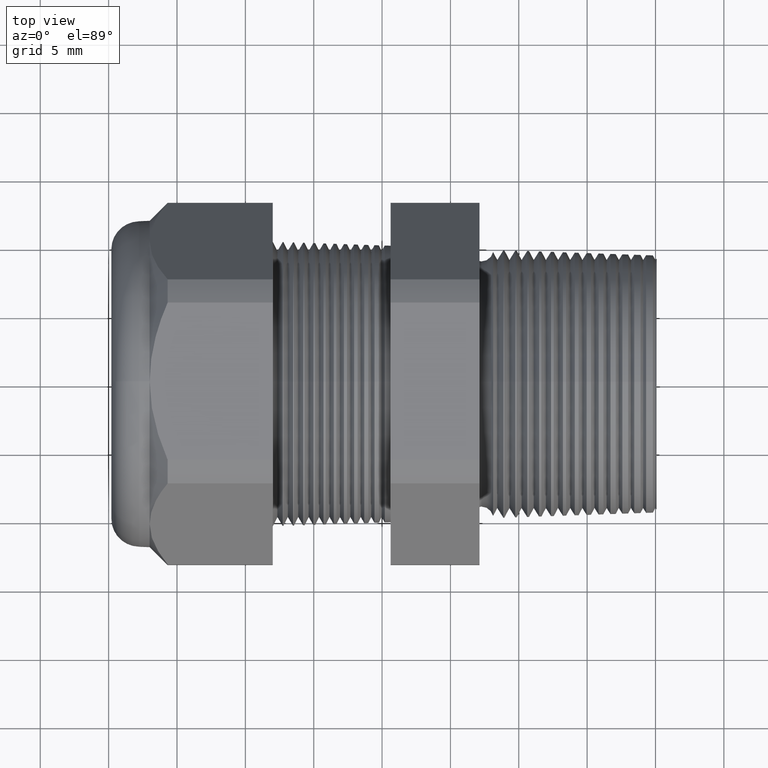
[diagram: clean part render]
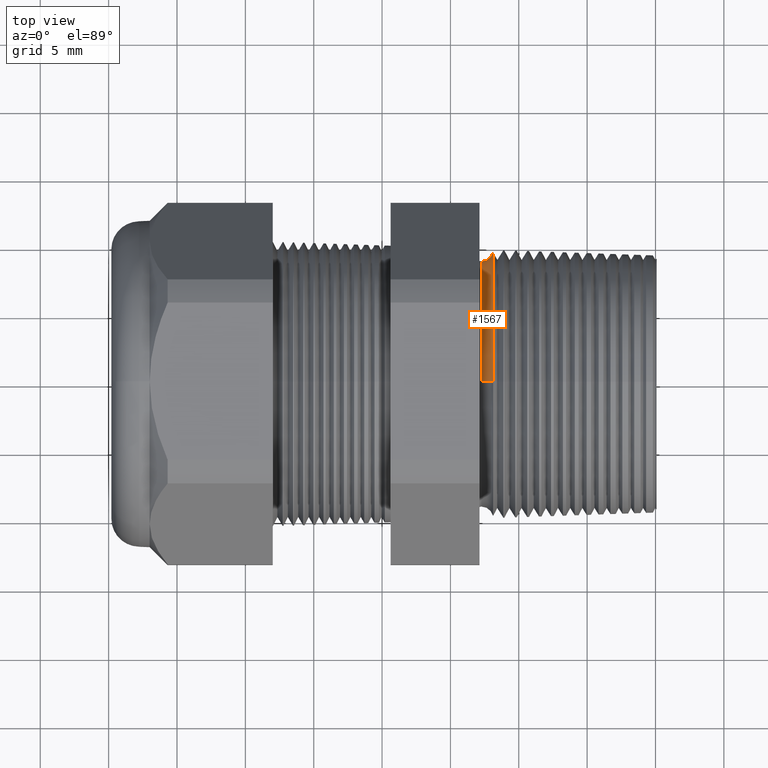
[diagram: same view with one face highlighted and labeled with its STEP entity id]
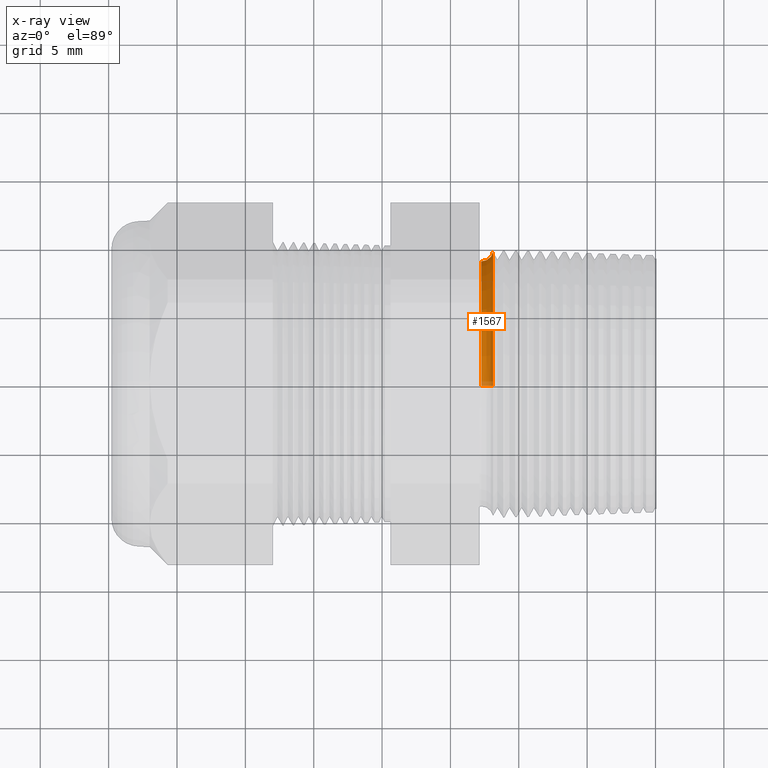
[diagram: x-ray of the same camera — body ghosted, the highlighted face saturated]
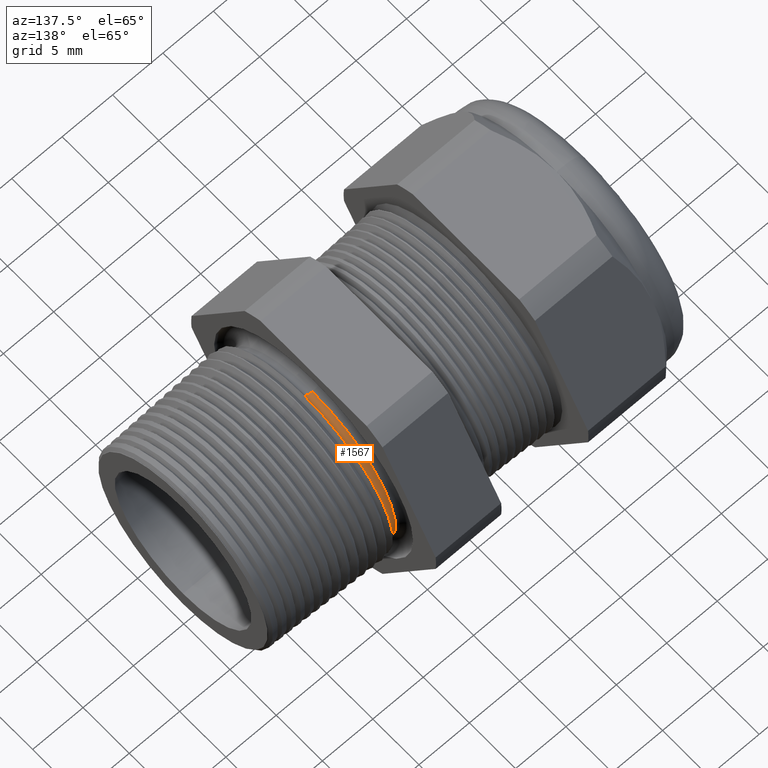
[diagram: same view with one face highlighted and labeled with its STEP entity id]
A machine part, top view. The second image highlights one B-rep face of the part: STEP entity #1567.
The next image is the same camera in x-ray: the body ghosted, the highlighted face saturated — about 4% of this face is hidden behind the body in this view.
A second angle (auxiliary view) of the same face is appended — the face is thin or edge-on in the first view.
In plain terms, the highlighted toroidal blend (fillet) surface has major radius 9.8859 mm and minor (blend) radius 0.889 mm.
Its self-contained STEP definition (entity closure, byte-faithful):
#1533 = ORIENTED_EDGE ( 'NONE', *, *, #1534, .T. ) ;
#1534 = EDGE_CURVE ( 'NONE', #1572, #1535, #4396, .T. ) ;
#1535 = VERTEX_POINT ( 'NONE', #4391 ) ;
#1536 = ORIENTED_EDGE ( 'NONE', *, *, #1537, .F. ) ;
#1537 = EDGE_CURVE ( 'NONE', #1538, #1535, #4390, .T. ) ;
#1538 = VERTEX_POINT ( 'NONE', #4385 ) ;
#1567 = ADVANCED_FACE ( 'NONE', ( #4417 ), #4416, .F. ) ;
#1568 = EDGE_LOOP ( 'NONE', ( #1569, #1533, #1536, #1580 ) ) ;
#1569 = ORIENTED_EDGE ( 'NONE', *, *, #1570, .T. ) ;
#1570 = EDGE_CURVE ( 'NONE', #1571, #1572, #4411, .T. ) ;
#1571 = VERTEX_POINT ( 'NONE', #4406 ) ;
#1572 = VERTEX_POINT ( 'NONE', #4405 ) ;
#1580 = ORIENTED_EDGE ( 'NONE', *, *, #1581, .F. ) ;
#1581 = EDGE_CURVE ( 'NONE', #1571, #1538, #4456, .T. ) ;
#4385 = CARTESIAN_POINT ( 'NONE',  ( -0.2708719432804220800, 0.0000000000000000000, 0.3814432734615635900 ) ) ;
#4386 = DIRECTION ( 'NONE',  ( 0.0000000000000000000, 1.224646799147352700E-016, 1.000000000000000000 ) ) ;
#4387 = DIRECTION ( 'NONE',  ( 0.0000000000000000000, 1.000000000000000000, -1.224646799147353200E-016 ) ) ;
#4388 = CARTESIAN_POINT ( 'NONE',  ( -0.3049999999999999400, 4.766411300050807300E-017, 0.3892070189845242000 ) ) ;
#4389 = AXIS2_PLACEMENT_3D ( 'NONE', #4388, #4387, #4386 ) ;
#4390 = CIRCLE ( 'NONE', #4389, 0.03499999999999996900 ) ;
#4391 = CARTESIAN_POINT ( 'NONE',  ( -0.3049999999999999400, 4.337784920349233400E-017, 0.3542070189845242800 ) ) ;
#4392 = DIRECTION ( 'NONE',  ( 0.0000000000000000000, 0.0000000000000000000, -1.000000000000000000 ) ) ;
#4393 = DIRECTION ( 'NONE',  ( 1.000000000000000000, 0.0000000000000000000, 0.0000000000000000000 ) ) ;
#4394 = CARTESIAN_POINT ( 'NONE',  ( -0.3049999999999999400, 0.0000000000000000000, 0.0000000000000000000 ) ) ;
#4395 = AXIS2_PLACEMENT_3D ( 'NONE', #4394, #4393, #4392 ) ;
#4396 = CIRCLE ( 'NONE', #4395, 0.3542070189845242800 ) ;
#4405 = CARTESIAN_POINT ( 'NONE',  ( -0.3049999999999999400, 0.0000000000000000000, -0.3542070189845242800 ) ) ;
#4406 = CARTESIAN_POINT ( 'NONE',  ( -0.2708719432804220800, 4.671332839009923800E-017, -0.3814432734615635900 ) ) ;
#4407 = DIRECTION ( 'NONE',  ( 0.0000000000000000000, 0.0000000000000000000, -1.000000000000000000 ) ) ;
#4408 = DIRECTION ( 'NONE',  ( 0.0000000000000000000, -1.000000000000000000, 0.0000000000000000000 ) ) ;
#4409 = CARTESIAN_POINT ( 'NONE',  ( -0.3049999999999999400, 0.0000000000000000000, -0.3892070189845242000 ) ) ;
#4410 = AXIS2_PLACEMENT_3D ( 'NONE', #4409, #4408, #4407 ) ;
#4411 = CIRCLE ( 'NONE', #4410, 0.03499999999999996900 ) ;
#4412 = DIRECTION ( 'NONE',  ( 0.0000000000000000000, 0.0000000000000000000, -1.000000000000000000 ) ) ;
#4413 = DIRECTION ( 'NONE',  ( 1.000000000000000000, 0.0000000000000000000, 0.0000000000000000000 ) ) ;
#4414 = CARTESIAN_POINT ( 'NONE',  ( -0.3049999999999999400, 0.0000000000000000000, 0.0000000000000000000 ) ) ;
#4415 = AXIS2_PLACEMENT_3D ( 'NONE', #4414, #4413, #4412 ) ;
#4416 = TOROIDAL_SURFACE ( 'NONE', #4415, 0.3892070189845242000, 0.03499999999999994800 ) ;
#4417 = FACE_OUTER_BOUND ( 'NONE', #1568, .T. ) ;
#4453 = DIRECTION ( 'NONE',  ( 0.0000000000000000000, 0.0000000000000000000, 1.000000000000000000 ) ) ;
#4454 = DIRECTION ( 'NONE',  ( 1.000000000000000000, 0.0000000000000000000, 0.0000000000000000000 ) ) ;
#4455 = AXIS2_PLACEMENT_3D ( 'NONE', #4460, #4454, #4453 ) ;
#4456 = CIRCLE ( 'NONE', #4455, 0.3814432734615635900 ) ;
#4460 = CARTESIAN_POINT ( 'NONE',  ( -0.2708719432804220800, 0.0000000000000000000, 0.0000000000000000000 ) ) ;